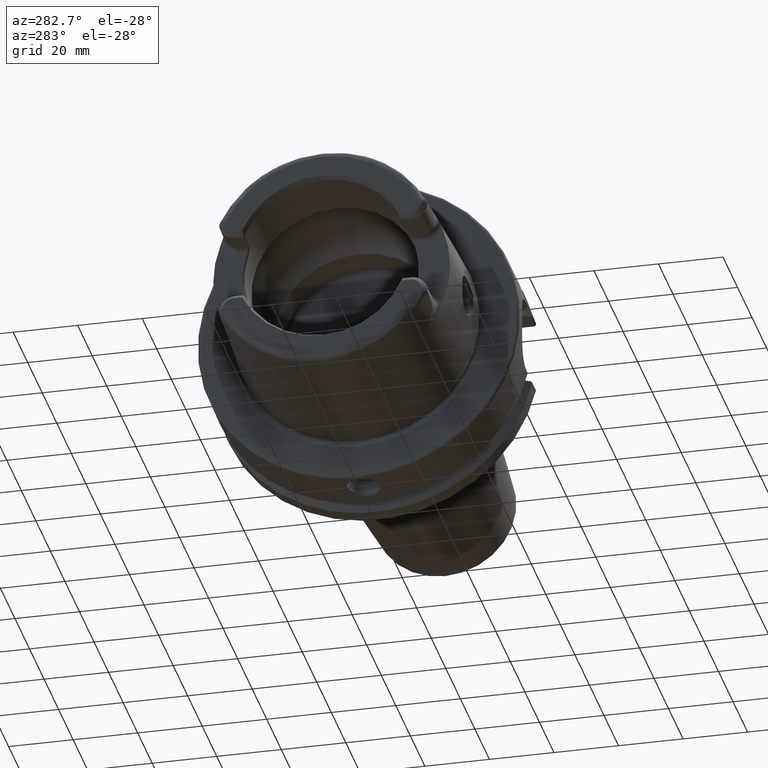
[diagram: clean part render]
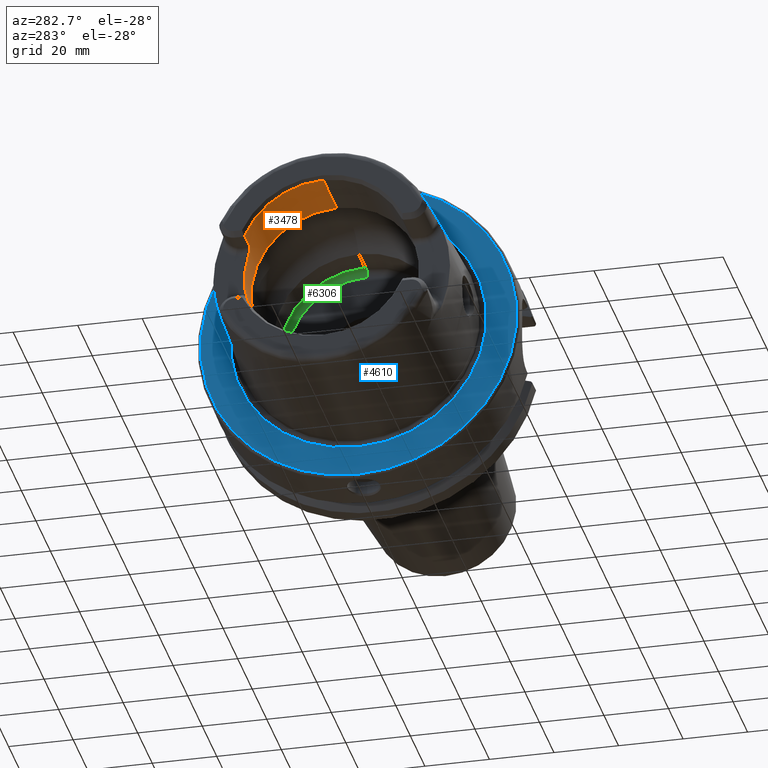
[diagram: same view with three faces highlighted in distinct colors, each labeled with its STEP entity id]
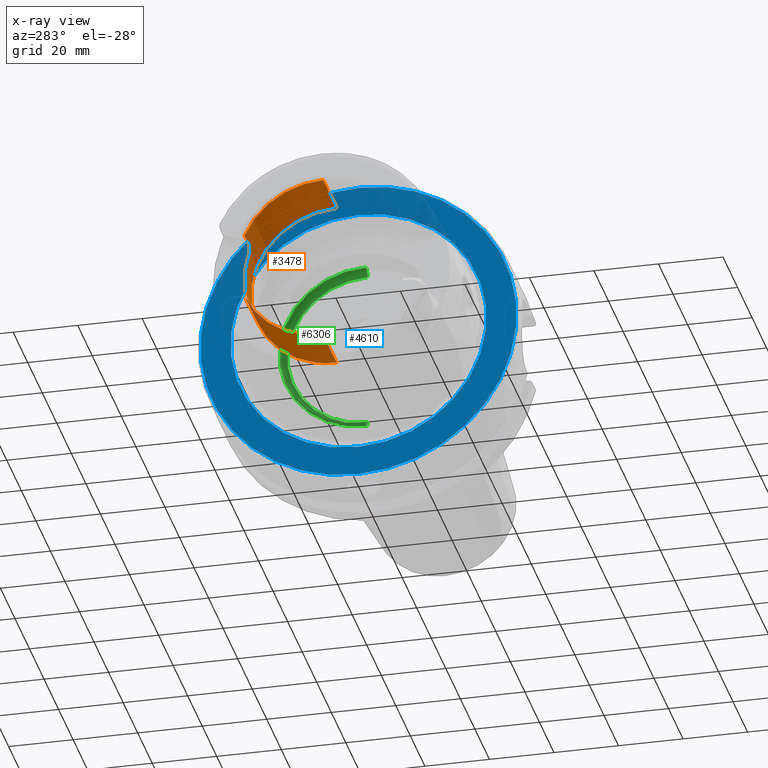
[diagram: x-ray of the same camera — body ghosted, the three highlighted faces saturated]
A machine part, auxiliary view with three faces highlighted in distinct colors.
The next image is the same camera in x-ray (body ghosted, the three faces saturated) — at least one of them is partly hidden behind the body in this view.
Their STEP definitions:

[orange] entity #3478 — the highlighted cylindrical surface (partial cylindrical patch) has radius 26.5 mm, axis along (1, 0, 0).
#237=CARTESIAN_POINT('',(-4.85E1,0.E0,0.E0));
#238=DIRECTION('',(1.E0,0.E0,0.E0));
#239=DIRECTION('',(0.E0,0.E0,-1.E0));
#240=AXIS2_PLACEMENT_3D('',#237,#238,#239);
#242=DIRECTION('',(-1.E0,-2.003659559567E-10,-3.466355579106E-10));
#243=VECTOR('',#242,6.499999678846E0);
#244=CARTESIAN_POINT('',(-4.200000032114E1,2.440989828297E1,-1.031537036812E1));
#245=LINE('',#244,#243);
#246=CARTESIAN_POINT('',(-3.949999999140E1,2.530699866065E1,-7.861667688007E0));
#247=CARTESIAN_POINT('',(-3.949795731454E1,2.523750189404E1,-8.085380378471E0));
#248=CARTESIAN_POINT('',(-3.956038447328E1,2.509761390786E1,-8.515347360772E0));
#249=CARTESIAN_POINT('',(-3.982663656548E1,2.487835176005E1,-9.134757987534E0));
#250=CARTESIAN_POINT('',(-4.024625699068E1,2.468206325073E1,-9.650053877008E0));
#251=CARTESIAN_POINT('',(-4.077947187094E1,2.452693438204E1,-1.003573344464E1));
#252=CARTESIAN_POINT('',(-4.138865352483E1,2.443047707860E1,-1.026689735567E1));
#253=CARTESIAN_POINT('',(-4.179354293840E1,2.440937373222E1,-1.031661164499E1));
#254=CARTESIAN_POINT('',(-4.200000032114E1,2.440989828297E1,-1.031537036812E1));
#256=CARTESIAN_POINT('',(-3.95E1,0.E0,0.E0));
#257=DIRECTION('',(-1.E0,0.E0,0.E0));
#258=DIRECTION('',(0.E0,9.549810934720E-1,2.966666666667E-1));
#259=AXIS2_PLACEMENT_3D('',#256,#257,#258);
#261=CARTESIAN_POINT('',(-4.200000001470E1,2.440989828171E1,1.031537037033E1));
#262=CARTESIAN_POINT('',(-4.178761129814E1,2.440975345339E1,1.031571308654E1));
#263=CARTESIAN_POINT('',(-4.137465751293E1,2.443170503768E1,1.026399809126E1));
#264=CARTESIAN_POINT('',(-4.077213940814E1,2.452889721140E1,1.003092465579E1));
#265=CARTESIAN_POINT('',(-4.024222096528E1,2.468349085380E1,9.646427129501E0));
#266=CARTESIAN_POINT('',(-3.982179537278E1,2.488114908925E1,9.127218319802E0));
#267=CARTESIAN_POINT('',(-3.955862203616E1,2.510023912486E1,8.507517729796E0));
#268=CARTESIAN_POINT('',(-3.949790263096E1,2.523852513593E1,8.082086529237E0));
#269=CARTESIAN_POINT('',(-3.949999998537E1,2.530699843276E1,7.861668426269E0));
#271=DIRECTION('',(1.E0,5.226861690345E-12,-6.086071831223E-12));
#272=VECTOR('',#271,6.499999985293E0);
#273=CARTESIAN_POINT('',(-4.85E1,2.440989828168E1,1.031537037037E1));
#274=LINE('',#273,#272);
#275=CARTESIAN_POINT('',(-4.85E1,0.E0,0.E0));
#276=DIRECTION('',(1.E0,0.E0,0.E0));
#277=DIRECTION('',(0.E0,9.211282370446E-1,3.892592592593E-1));
#278=AXIS2_PLACEMENT_3D('',#275,#276,#277);
#280=CARTESIAN_POINT('',(-3.000337567297E1,0.E0,0.E0));
#281=DIRECTION('',(1.E0,0.E0,0.E0));
#282=DIRECTION('',(0.E0,0.E0,-1.E0));
#283=AXIS2_PLACEMENT_3D('',#280,#281,#282);
#308=DIRECTION('',(-1.E0,-5.551588003877E-9,2.922803554237E-11));
#309=VECTOR('',#308,1.849662432609E1);
#310=CARTESIAN_POINT('',(-3.000337567297E1,0.E0,-2.65E1));
#311=LINE('',#310,#309);
#317=DIRECTION('',(-1.E0,5.551588026347E-9,-2.922649895337E-11));
#318=VECTOR('',#317,1.849662432609E1);
#319=CARTESIAN_POINT('',(-3.000337567297E1,0.E0,2.65E1));
#320=LINE('',#319,#318);
#2780=CARTESIAN_POINT('',(-3.000337567297E1,0.E0,-2.65E1));
#2781=CARTESIAN_POINT('',(-3.000337567297E1,0.E0,2.65E1));
#2782=VERTEX_POINT('',#2780);
#2783=VERTEX_POINT('',#2781);
#2961=VERTEX_POINT('',#246);
#2962=VERTEX_POINT('',#254);
#2965=CARTESIAN_POINT('',(-3.95E1,2.530699897701E1,7.861666666667E0));
#2966=VERTEX_POINT('',#2965);
#2969=VERTEX_POINT('',#261);
#2981=CARTESIAN_POINT('',(-4.85E1,0.E0,-2.65E1));
#2982=CARTESIAN_POINT('',(-4.85E1,2.440989828168E1,-1.031537037037E1));
#2983=VERTEX_POINT('',#2981);
#2984=VERTEX_POINT('',#2982);
#2987=CARTESIAN_POINT('',(-4.85E1,0.E0,2.65E1));
#2989=VERTEX_POINT('',#2987);
#2991=CARTESIAN_POINT('',(-4.85E1,2.440989828168E1,1.031537037037E1));
#2992=VERTEX_POINT('',#2991);
#3452=CARTESIAN_POINT('',(0.E0,0.E0,0.E0));
#3453=DIRECTION('',(1.E0,0.E0,0.E0));
#3454=DIRECTION('',(0.E0,0.E0,1.E0));
#3455=AXIS2_PLACEMENT_3D('',#3452,#3453,#3454);
#3456=CYLINDRICAL_SURFACE('',#3455,2.65E1);
#3458=ORIENTED_EDGE('',*,*,#3457,.T.);
#3460=ORIENTED_EDGE('',*,*,#3459,.F.);
#3462=ORIENTED_EDGE('',*,*,#3461,.F.);
#3463=ORIENTED_EDGE('',*,*,#3426,.F.);
#3465=ORIENTED_EDGE('',*,*,#3464,.F.);
#3467=ORIENTED_EDGE('',*,*,#3466,.F.);
#3469=ORIENTED_EDGE('',*,*,#3468,.T.);
#3471=ORIENTED_EDGE('',*,*,#3470,.F.);
#3473=ORIENTED_EDGE('',*,*,#3472,.F.);
#3475=ORIENTED_EDGE('',*,*,#3474,.T.);
#3476=EDGE_LOOP('',(#3458,#3460,#3462,#3463,#3465,#3467,#3469,#3471,#3473,
#3475));
#3477=FACE_OUTER_BOUND('',#3476,.F.);
#3478=ADVANCED_FACE('',(#3477),#3456,.F.);
#241=CIRCLE('',#240,2.65E1);
#255=B_SPLINE_CURVE_WITH_KNOTS('',3,(#246,#247,#248,#249,#250,#251,#252,#253,
#254),.UNSPECIFIED.,.F.,.F.,(4,1,1,1,1,1,4),(0.E0,1.666666666667E-1,
3.333333333333E-1,5.E-1,6.666666666667E-1,8.333333333333E-1,1.E0),
.UNSPECIFIED.);
#260=CIRCLE('',#259,2.65E1);
#270=B_SPLINE_CURVE_WITH_KNOTS('',3,(#261,#262,#263,#264,#265,#266,#267,#268,
#269),.UNSPECIFIED.,.F.,.F.,(4,1,1,1,1,1,4),(0.E0,1.666666666667E-1,
3.333333333333E-1,5.E-1,6.666666666667E-1,8.333333333333E-1,1.E0),
.UNSPECIFIED.);
#279=CIRCLE('',#278,2.65E1);
#284=CIRCLE('',#283,2.65E1);
#3426=EDGE_CURVE('',#2966,#2961,#260,.T.);
#3457=EDGE_CURVE('',#2983,#2984,#241,.T.);
#3459=EDGE_CURVE('',#2962,#2984,#245,.T.);
#3461=EDGE_CURVE('',#2961,#2962,#255,.T.);
#3464=EDGE_CURVE('',#2969,#2966,#270,.T.);
#3466=EDGE_CURVE('',#2992,#2969,#274,.T.);
#3468=EDGE_CURVE('',#2992,#2989,#279,.T.);
#3470=EDGE_CURVE('',#2783,#2989,#320,.T.);
#3472=EDGE_CURVE('',#2782,#2783,#284,.T.);
#3474=EDGE_CURVE('',#2782,#2983,#311,.T.);

[blue] entity #4610 — the highlighted planar face has unit normal (1, 0, 0).
#1250=CARTESIAN_POINT('',(0.E0,0.E0,0.E0));
#1251=DIRECTION('',(1.E0,0.E0,0.E0));
#1252=DIRECTION('',(0.E0,0.E0,-1.E0));
#1253=AXIS2_PLACEMENT_3D('',#1250,#1251,#1252);
#1255=CARTESIAN_POINT('',(0.E0,0.E0,0.E0));
#1256=DIRECTION('',(1.E0,0.E0,0.E0));
#1257=DIRECTION('',(0.E0,0.E0,1.E0));
#1258=AXIS2_PLACEMENT_3D('',#1255,#1256,#1257);
#1260=CARTESIAN_POINT('',(0.E0,0.E0,0.E0));
#1261=DIRECTION('',(-1.E0,0.E0,0.E0));
#1262=DIRECTION('',(0.E0,0.E0,-1.E0));
#1263=AXIS2_PLACEMENT_3D('',#1260,#1261,#1262);
#1265=CARTESIAN_POINT('',(0.E0,0.E0,0.E0));
#1266=DIRECTION('',(-1.E0,0.E0,0.E0));
#1267=DIRECTION('',(0.E0,0.E0,1.E0));
#1268=AXIS2_PLACEMENT_3D('',#1265,#1266,#1267);
#2816=CARTESIAN_POINT('',(0.E0,0.E0,-3.96822E1));
#2817=CARTESIAN_POINT('',(0.E0,0.E0,3.96822E1));
#2818=VERTEX_POINT('',#2816);
#2819=VERTEX_POINT('',#2817);
#3129=CARTESIAN_POINT('',(0.E0,0.E0,-4.9E1));
#3130=CARTESIAN_POINT('',(0.E0,-1.200153863164E-14,4.9E1));
#3131=VERTEX_POINT('',#3129);
#3132=VERTEX_POINT('',#3130);
#4595=CARTESIAN_POINT('',(0.E0,0.E0,0.E0));
#4596=DIRECTION('',(1.E0,0.E0,0.E0));
#4597=DIRECTION('',(0.E0,0.E0,1.E0));
#4598=AXIS2_PLACEMENT_3D('',#4595,#4596,#4597);
#4599=PLANE('',#4598);
#4601=ORIENTED_EDGE('',*,*,#4600,.F.);
#4603=ORIENTED_EDGE('',*,*,#4602,.F.);
#4604=EDGE_LOOP('',(#4601,#4603));
#4605=FACE_OUTER_BOUND('',#4604,.F.);
#4606=ORIENTED_EDGE('',*,*,#4551,.F.);
#4607=ORIENTED_EDGE('',*,*,#4536,.F.);
#4608=EDGE_LOOP('',(#4606,#4607));
#4609=FACE_BOUND('',#4608,.F.);
#4610=ADVANCED_FACE('',(#4605,#4609),#4599,.F.);
#1254=CIRCLE('',#1253,3.96822E1);
#1259=CIRCLE('',#1258,3.96822E1);
#1264=CIRCLE('',#1263,4.9E1);
#1269=CIRCLE('',#1268,4.9E1);
#4536=EDGE_CURVE('',#2819,#2818,#1259,.T.);
#4551=EDGE_CURVE('',#2818,#2819,#1254,.T.);
#4600=EDGE_CURVE('',#3131,#3132,#1264,.T.);
#4602=EDGE_CURVE('',#3132,#3131,#1269,.T.);

[green] entity #6306 — the highlighted toroidal blend (fillet) surface has major radius 24.9 mm and minor (blend) radius 2 mm.
#232=CARTESIAN_POINT('',(9.3E0,0.E0,0.E0));
#233=DIRECTION('',(1.E0,0.E0,0.E0));
#234=DIRECTION('',(0.E0,0.E0,-1.E0));
#235=AXIS2_PLACEMENT_3D('',#232,#233,#234);
#2694=CARTESIAN_POINT('',(1.05E1,0.E0,-2.49E1));
#2695=DIRECTION('',(0.E0,1.E0,0.E0));
#2696=DIRECTION('',(1.E0,0.E0,0.E0));
#2697=AXIS2_PLACEMENT_3D('',#2694,#2695,#2696);
#2704=CARTESIAN_POINT('',(1.05E1,0.E0,2.49E1));
#2705=DIRECTION('',(0.E0,-1.E0,0.E0));
#2706=DIRECTION('',(1.E0,0.E0,0.E0));
#2707=AXIS2_PLACEMENT_3D('',#2704,#2705,#2706);
#2709=CARTESIAN_POINT('',(1.25E1,0.E0,0.E0));
#2710=DIRECTION('',(1.E0,0.E0,0.E0));
#2711=DIRECTION('',(0.E0,0.E0,-1.E0));
#2712=AXIS2_PLACEMENT_3D('',#2709,#2710,#2711);
#2792=CARTESIAN_POINT('',(1.25E1,0.E0,-2.49E1));
#2793=CARTESIAN_POINT('',(1.25E1,0.E0,2.49E1));
#2794=VERTEX_POINT('',#2792);
#2795=VERTEX_POINT('',#2793);
#2796=CARTESIAN_POINT('',(9.3E0,0.E0,-2.65E1));
#2797=CARTESIAN_POINT('',(9.3E0,0.E0,2.65E1));
#2798=VERTEX_POINT('',#2796);
#2799=VERTEX_POINT('',#2797);
#6295=CARTESIAN_POINT('',(1.05E1,0.E0,0.E0));
#6296=DIRECTION('',(1.E0,0.E0,0.E0));
#6297=DIRECTION('',(0.E0,0.E0,1.E0));
#6298=AXIS2_PLACEMENT_3D('',#6295,#6296,#6297);
#6299=TOROIDAL_SURFACE('',#6298,2.49E1,2.E0);
#6300=ORIENTED_EDGE('',*,*,#3447,.T.);
#6301=ORIENTED_EDGE('',*,*,#6290,.F.);
#6302=ORIENTED_EDGE('',*,*,#6272,.F.);
#6303=ORIENTED_EDGE('',*,*,#6287,.T.);
#6304=EDGE_LOOP('',(#6300,#6301,#6302,#6303));
#6305=FACE_OUTER_BOUND('',#6304,.F.);
#6306=ADVANCED_FACE('',(#6305),#6299,.F.);
#236=CIRCLE('',#235,2.65E1);
#2698=CIRCLE('',#2697,2.E0);
#2708=CIRCLE('',#2707,2.E0);
#2713=CIRCLE('',#2712,2.49E1);
#3447=EDGE_CURVE('',#2798,#2799,#236,.T.);
#6272=EDGE_CURVE('',#2794,#2795,#2713,.T.);
#6287=EDGE_CURVE('',#2794,#2798,#2698,.T.);
#6290=EDGE_CURVE('',#2795,#2799,#2708,.T.);